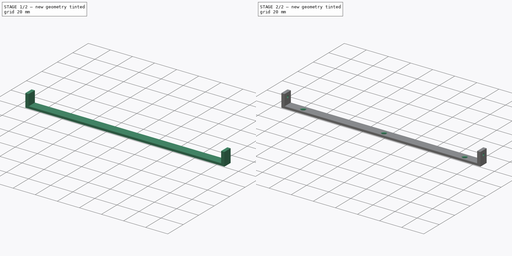
[diagram: build sequence overview — one tinted view per stage of 2, left to right]
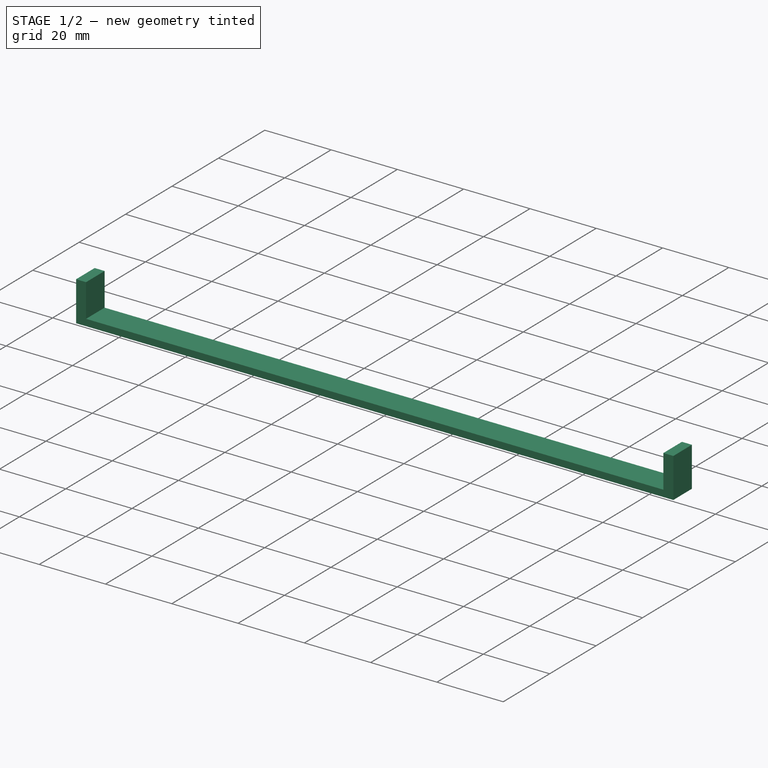
[diagram: stage 1 of 2 — iso view after this stage's code; geometry added in this stage tinted green]
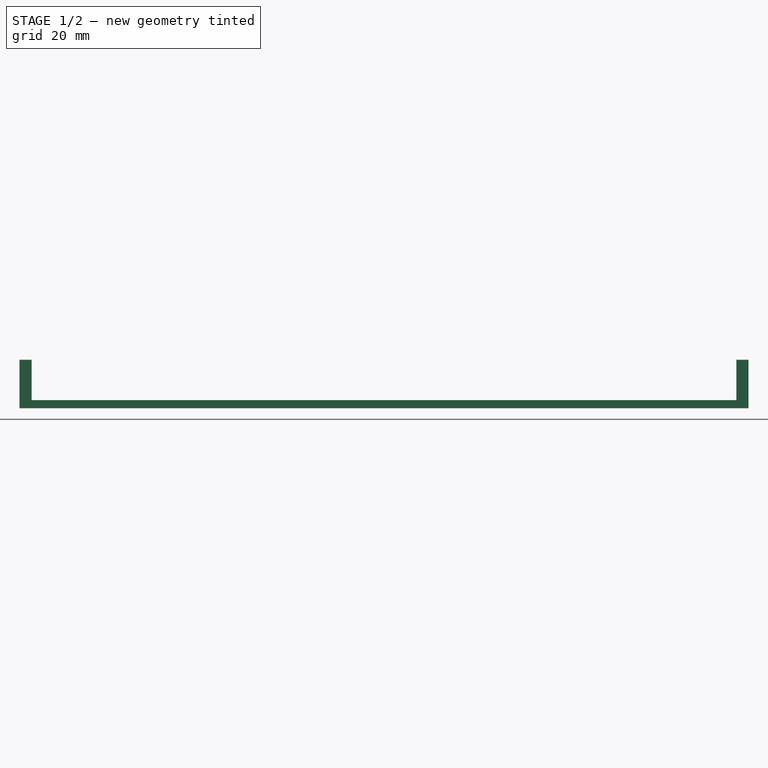
[diagram: stage 1 of 2 — front view after this stage's code; geometry added in this stage tinted green]
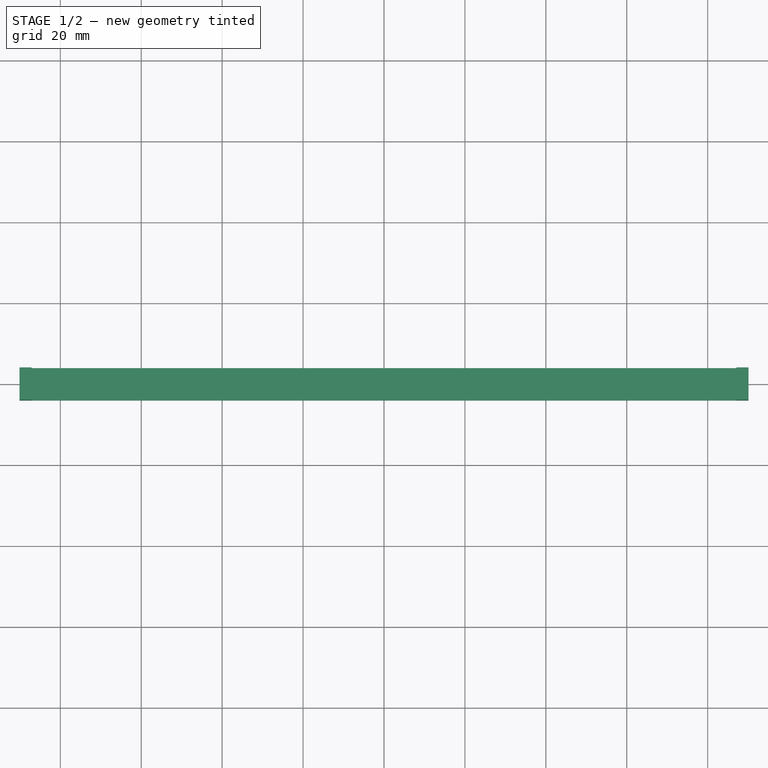
[diagram: stage 1 of 2 — top view after this stage's code; geometry added in this stage tinted green]
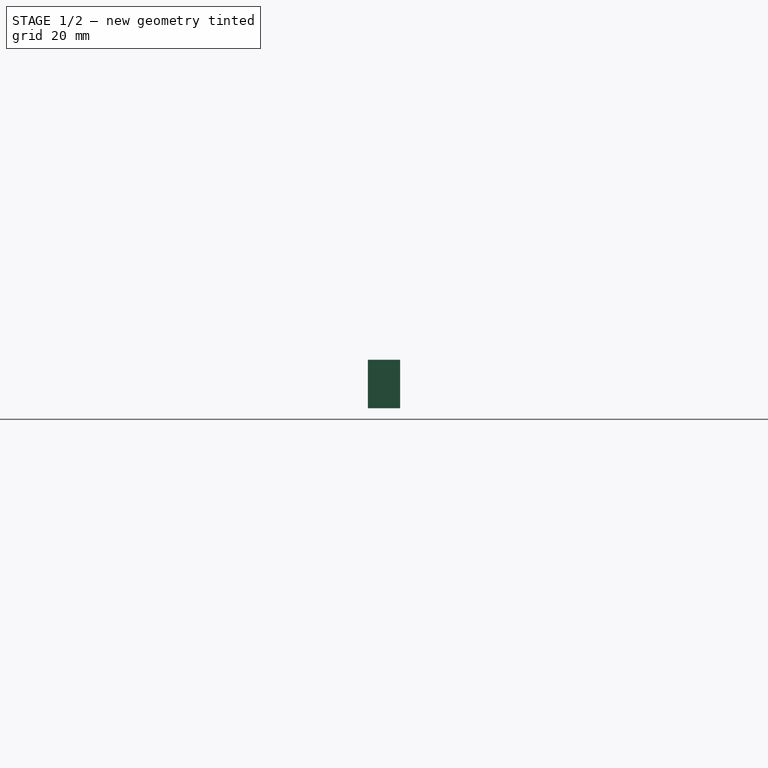
[diagram: stage 1 of 2 — right view after this stage's code; geometry added in this stage tinted green]
FCSTD DOCUMENT  (FreeCAD 0.19R24276 (Git))
Label: base-switch
License: All rights reserved
LicenseURL: http://en.wikipedia.org/wiki/All_rights_reserved
objects: Sketcher::SketchObject×4, PartDesign::Pad×2, PartDesign::Hole×2, PartDesign::Body×1
note: 13 computed .brp shape members not serialized (recipe doc carries the construction recipe); baked Part::Feature solids carry a one-line shape summary decoded from their .brp

FEATURE [Sketcher::SketchObject] Sketch  label="base"
  FullyConstrained = true
  MapMode = 5
  Support = -> [XY_Plane]
  sketch-geometry (4):
    g0: LineSegment StartX=-90.1 StartY=4 StartZ=0 EndX=90.1 EndY=4 EndZ=0
    g1: LineSegment StartX=90.1 StartY=4 StartZ=0 EndX=90.1 EndY=-4 EndZ=0
    g2: LineSegment StartX=90.1 StartY=-4 StartZ=0 EndX=-90.1 EndY=-4 EndZ=0
    g3: LineSegment StartX=-90.1 StartY=-4 StartZ=0 EndX=-90.1 EndY=4 EndZ=0
  constraints (12):
    c: Coincident(g0,g1)
    c: Coincident(g1,g2)
    c: Coincident(g2,g3)
    c: Coincident(g3,g0)
    c: Horizontal(g0)
    c: Horizontal(g2)
    c: Vertical(g1)
    c: Vertical(g3)
    c: DistanceX(g-1,g0) = 90.1
    c: DistanceX(g0,g-1) = 90.1
    c: DistanceY(g-1,g0) = 4
    c: DistanceY(g2,g-1) = 4
FEATURE [PartDesign::Pad] Pad  label="base_pad"
  Direction = (1,1,1)
  Length = 2
  Length2 = 100
  Profile = -> Sketch
  Type = 0
FEATURE [Sketcher::SketchObject] Sketch001  label="holder"
  FullyConstrained = true
  MapMode = 5
  Placement = pos=(0,0,2) rot=(0,0,1;0rad)
  Support = -> [Pad]
  sketch-geometry (8):
    g0: LineSegment StartX=-90.1 StartY=4 StartZ=0 EndX=-87.1 EndY=4 EndZ=0
    g1: LineSegment StartX=-87.1 StartY=4 StartZ=0 EndX=-87.1 EndY=-4 EndZ=0
    g2: LineSegment StartX=-87.1 StartY=-4 StartZ=0 EndX=-90.1 EndY=-4 EndZ=0
    g3: LineSegment StartX=-90.1 StartY=-4 StartZ=0 EndX=-90.1 EndY=4 EndZ=0
    g4: LineSegment StartX=87.1 StartY=4 StartZ=0 EndX=90.1 EndY=4 EndZ=0
    g5: LineSegment StartX=90.1 StartY=4 StartZ=0 EndX=90.1 EndY=-4 EndZ=0
    g6: LineSegment StartX=90.1 StartY=-4 StartZ=0 EndX=87.1 EndY=-4 EndZ=0
    g7: LineSegment StartX=87.1 StartY=-4 StartZ=0 EndX=87.1 EndY=4 EndZ=0
  constraints (24):
    c: Coincident(g0,g1)
    c: Coincident(g1,g2)
    c: Coincident(g2,g3)
    c: Coincident(g3,g0)
    c: Horizontal(g0)
    c: Horizontal(g2)
    c: Vertical(g1)
    c: Vertical(g3)
    c: Coincident(g4,g5)
    c: Coincident(g5,g6)
    c: Coincident(g6,g7)
    c: Coincident(g7,g4)
    c: Horizontal(g4)
    c: Horizontal(g6)
    c: Vertical(g5)
    c: Vertical(g7)
    c: DistanceX(g0,g0) = 3
    c: DistanceX(g4,g4) = 3
    c: DistanceX(g-1,g4) = 87.1
    c: DistanceX(g0,g-1) = 87.1
    c: DistanceY(g3,g3) = 8
    c: DistanceY(g1,g-1) = 4
    c: DistanceY(g6,g-1) = 4
    c: DistanceY(g5,g5) = 8
FEATURE [Sketcher::SketchObject] Sketch002  label="hole"
  FullyConstrained = true
  MapMode = 5
  Placement = pos=(90.1,0,0) rot=(0.57735,0.57735,0.57735;2.0944rad)
  sketch-geometry (1):
    g0: Circle CenterX=0 CenterY=8.2 CenterZ=0 NormalX=0 NormalY=0 NormalZ=1 AngleXU=0 Radius=1.1
  constraints (3):
    c: PointOnObject(g0,g-2)
    c: Diameter(g0) = 2.2
    c: DistanceY(g-1,g0) = 8.2
FEATURE [PartDesign::Pad] Pad001  label="holder_pad"
  BaseFeature = -> Pad
  Direction = (1,1,1)
  Length = 10
  Length2 = 100
  Profile = -> Sketch001
  Type = 0
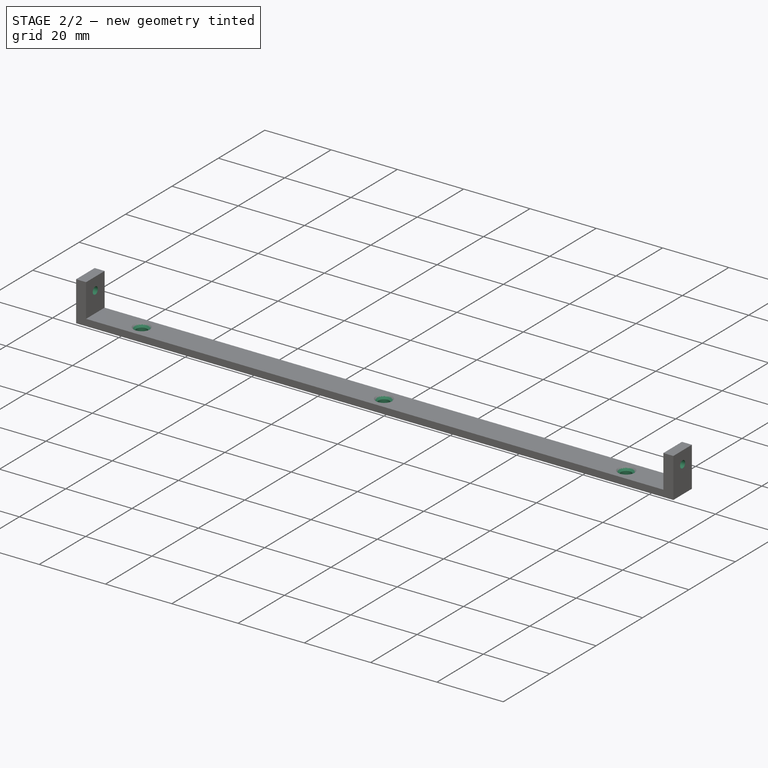
[diagram: stage 2 of 2 — iso view after this stage's code; geometry added in this stage tinted green]
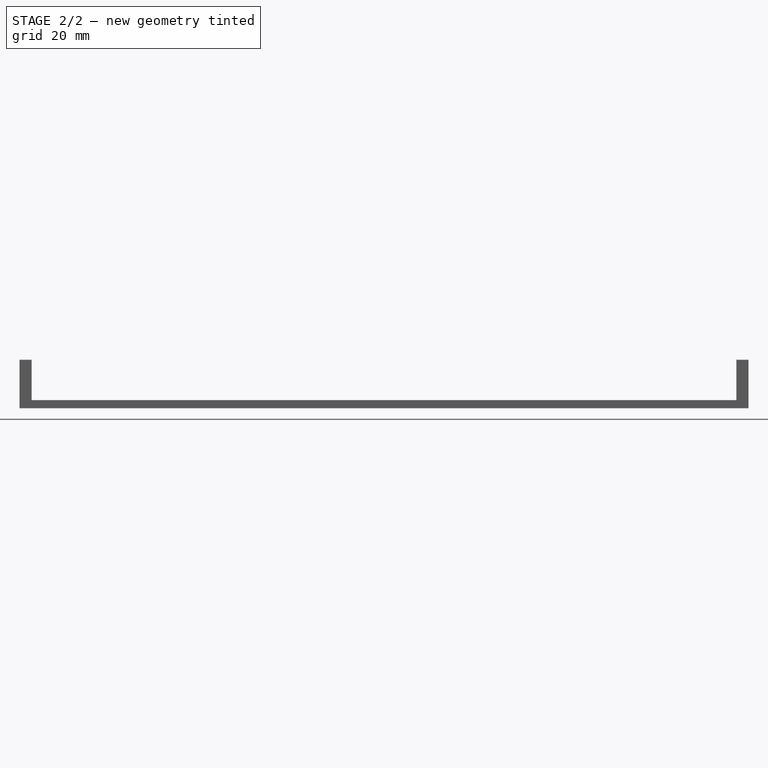
[diagram: stage 2 of 2 — front view after this stage's code; geometry added in this stage tinted green]
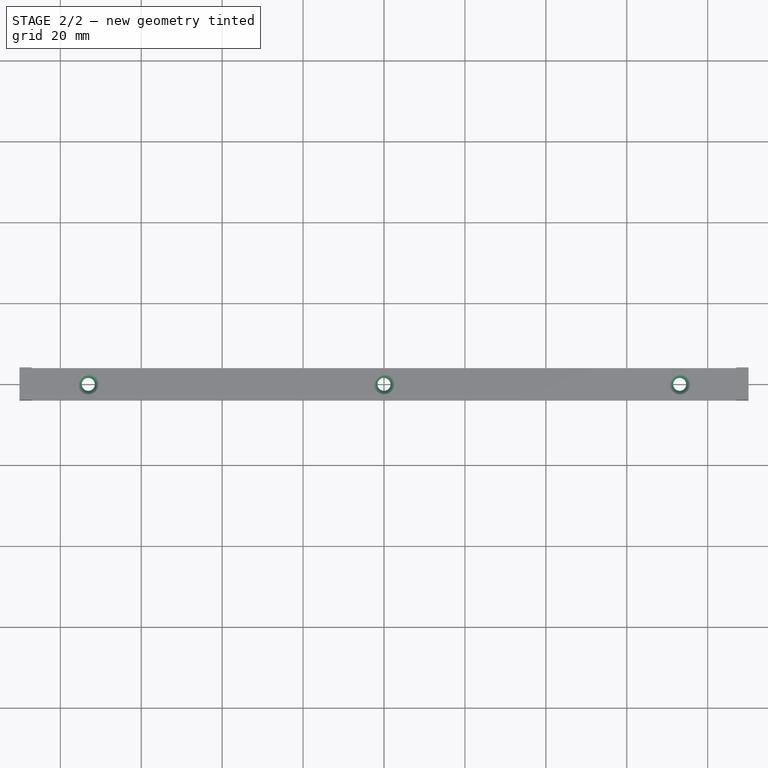
[diagram: stage 2 of 2 — top view after this stage's code; geometry added in this stage tinted green]
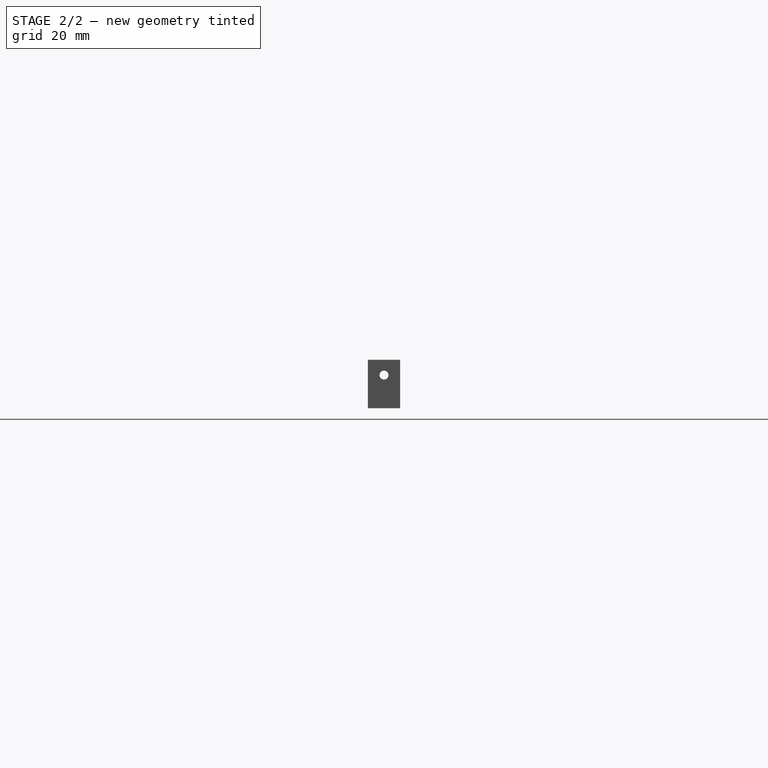
[diagram: stage 2 of 2 — right view after this stage's code; geometry added in this stage tinted green]
FEATURE [PartDesign::Hole] Hole  label="hole_hole"
  BaseFeature = -> Pad001
  Depth = 25
  DepthType = 1
  Diameter = 2.2
  DrillForDepth = false
  DrillPoint = 1
  DrillPointAngle = 118
  HoleCutCountersinkAngle = 90
  HoleCutCustomValues = false
  HoleCutDepth = 0
  HoleCutDiameter = 6.1
  HoleCutType = 0
  ModelActualThread = false
  Profile = -> Sketch002
  Tapered = false
  TaperedAngle = 90
  ThreadAngle = 0
  ThreadClass = 0
  ThreadCutOffInner = 0
  ThreadCutOffOuter = 0
  ThreadDirection = 0
  ThreadFit = 0
  ThreadPitch = 0
  ThreadSize = 0
  ThreadType = 0
  Threaded = false
FEATURE [Sketcher::SketchObject] Sketch003  label="screw_hole"
  FullyConstrained = true
  MapMode = 5
  Placement = pos=(0,0,2) rot=(0,0,1;0rad)
  Support = -> [Hole]
  sketch-geometry (3):
    g0: Circle CenterX=-73.085 CenterY=0 CenterZ=0 NormalX=0 NormalY=0 NormalZ=1 AngleXU=0 Radius=1.6
    g1: Circle CenterX=0 CenterY=0 CenterZ=0 NormalX=0 NormalY=0 NormalZ=1 AngleXU=0 Radius=1.6
    g2: Circle CenterX=73.085 CenterY=0 CenterZ=0 NormalX=0 NormalY=0 NormalZ=1 AngleXU=0 Radius=1.6
  constraints (9):
    c: Radius(g0) = 1.6
    c: PointOnObject(g1,g-2)
    c: Radius(g1) = 1.6
    c: Radius(g2) = 1.6
    c: DistanceX(g0,g-1) = 73.085
    c: DistanceX(g-1,g2) = 73.085
    c: DistanceY(g1,g-1) = 0
    c: DistanceY(g0,g-1) = 0
    c: DistanceY(g2,g-1) = 0
FEATURE [PartDesign::Hole] Hole001  label="screw_hole_hole"
  BaseFeature = -> Hole
  Depth = 25
  DepthType = 1
  Diameter = 3.2
  DrillForDepth = false
  DrillPoint = 1
  DrillPointAngle = 118
  HoleCutCountersinkAngle = 90
  HoleCutCustomValues = false
  HoleCutDepth = 0
  HoleCutDiameter = 5
  HoleCutType = 2
  ModelActualThread = false
  Profile = -> Sketch003
  Tapered = false
  TaperedAngle = 90
  ThreadAngle = 0
  ThreadClass = 0
  ThreadCutOffInner = 0
  ThreadCutOffOuter = 0
  ThreadDirection = 0
  ThreadFit = 0
  ThreadPitch = 0
  ThreadSize = 0
  ThreadType = 0
  Threaded = false
FEATURE [PartDesign::Body] Body
  Group = -> [Sketch,Pad,Sketch001,Sketch002,Sketch003,Pad001,Hole,Hole001]
  Origin = -> Origin
  Tip = -> Hole001
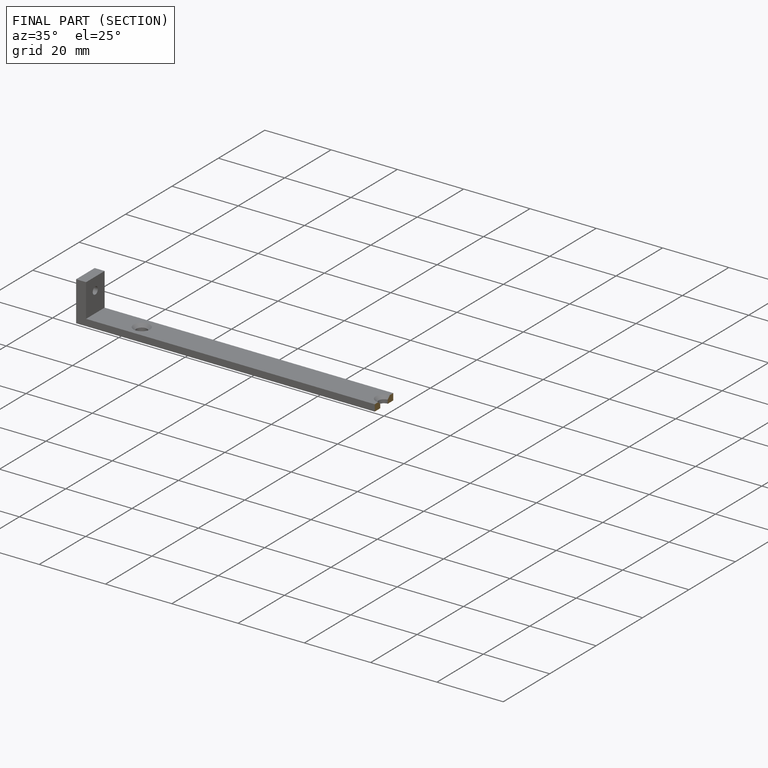
[diagram: finished part — half-section view (interior)]
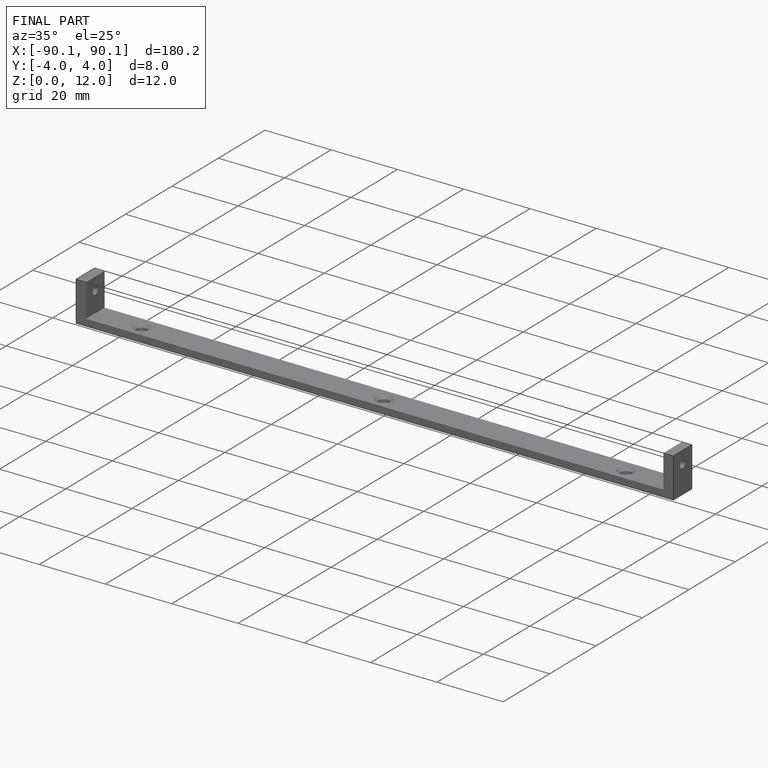
[diagram: finished part — iso view with bounding-box wireframe]
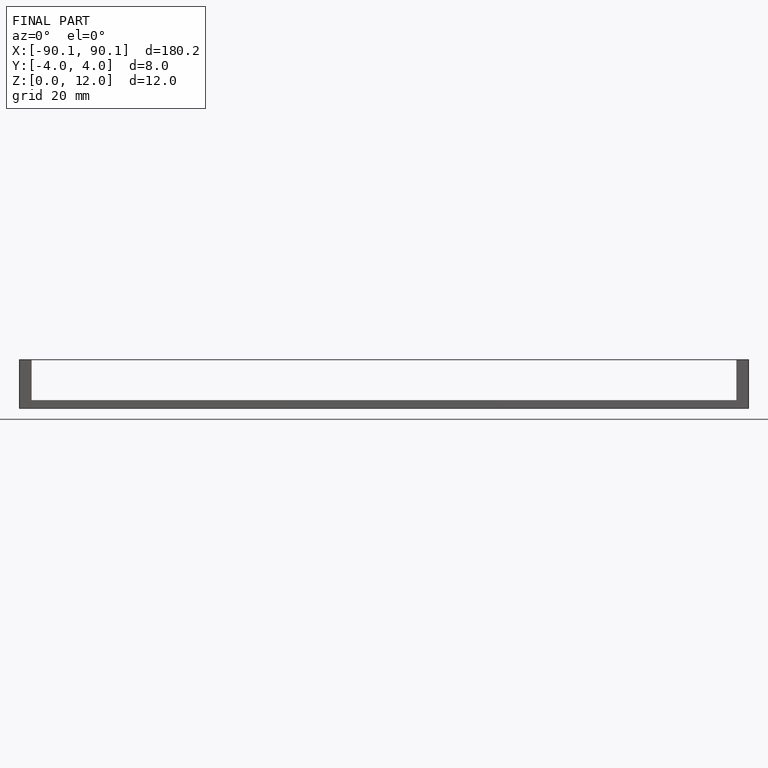
[diagram: finished part — front view with bounding-box wireframe]
